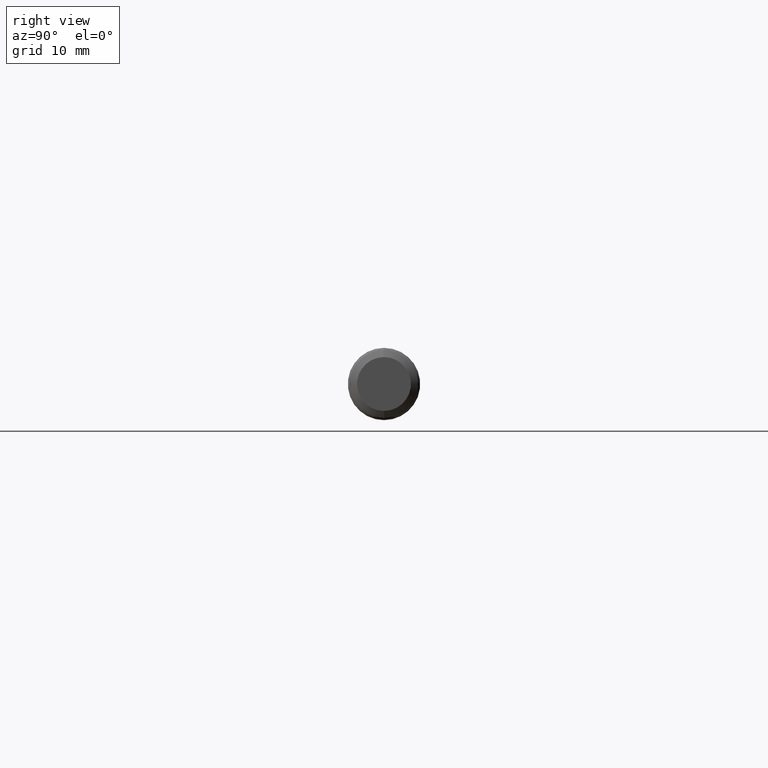
[diagram: clean part render]
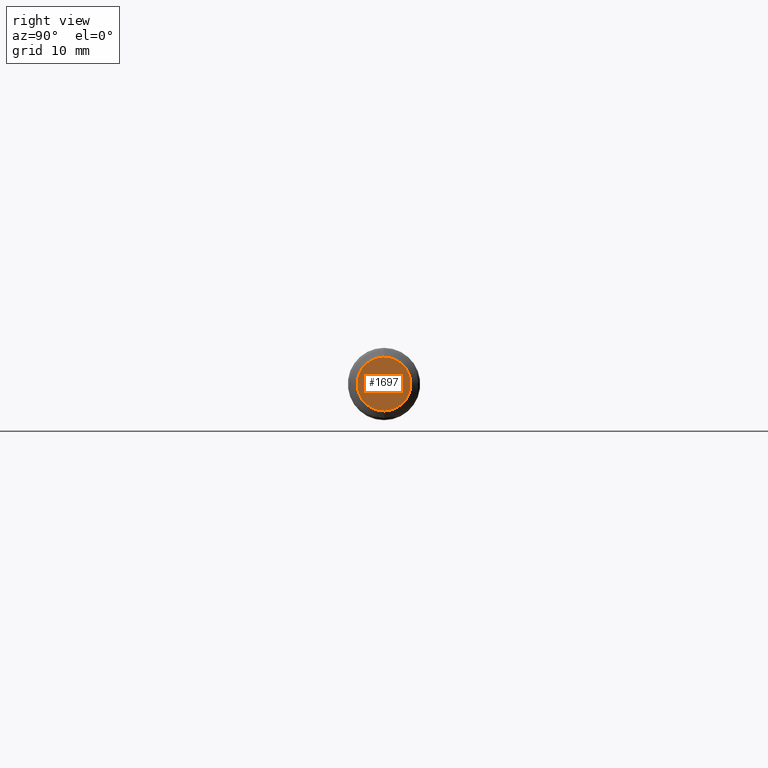
[diagram: same view with one face highlighted and labeled with its STEP entity id]
A machine part, right view. The second image highlights one B-rep face of the part: STEP entity #1697.
In plain terms, the highlighted planar face has unit normal (-1, 0, -0).
Its self-contained STEP definition (entity closure, byte-faithful):
#13 = CARTESIAN_POINT ( 'NONE',  ( 2.500000000000000000, 0.000000000000000000, 0.000000000000000000 ) ) ;
#35 = CARTESIAN_POINT ( 'NONE',  ( 2.500000000000000000, 0.1174999999999999933, 0.000000000000000000 ) ) ;
#145 = CARTESIAN_POINT ( 'NONE',  ( 2.500000000000000000, 0.000000000000000000, 0.000000000000000000 ) ) ;
#535 = DIRECTION ( 'NONE',  ( -1.000000000000000000, -0.000000000000000000, -0.000000000000000000 ) ) ;
#837 = VERTEX_POINT ( 'NONE', #1914 ) ;
#1132 = AXIS2_PLACEMENT_3D ( 'NONE', #145, #1568, #2934 ) ;
#1147 = DIRECTION ( 'NONE',  ( -1.000000000000000000, 0.000000000000000000, -0.000000000000000000 ) ) ;
#1462 = CARTESIAN_POINT ( 'NONE',  ( 2.500000000000000000, 0.000000000000000000, 0.09298460692259646887 ) ) ;
#1509 = FACE_OUTER_BOUND ( 'NONE', #3588, .T. ) ;
#1568 = DIRECTION ( 'NONE',  ( -1.000000000000000000, -0.000000000000000000, -0.000000000000000000 ) ) ;
#1651 = DIRECTION ( 'NONE',  ( 0.000000000000000000, 0.000000000000000000, 1.000000000000000000 ) ) ;
#1697 = ADVANCED_FACE ( 'NONE', ( #1509 ), #2837, .F. ) ;
#1914 = CARTESIAN_POINT ( 'NONE',  ( 2.500000000000000000, 1.138733012377325927E-17, -0.09298460692259646887 ) ) ;
#2245 = CIRCLE ( 'NONE', #2944, 0.09298460692259646887 ) ;
#2690 = ORIENTED_EDGE ( 'NONE', *, *, #3226, .F. ) ;
#2837 = PLANE ( 'NONE',  #2991 ) ;
#2909 = VERTEX_POINT ( 'NONE', #1462 ) ;
#2934 = DIRECTION ( 'NONE',  ( 0.000000000000000000, 0.000000000000000000, 1.000000000000000000 ) ) ;
#2944 = AXIS2_PLACEMENT_3D ( 'NONE', #13, #535, #1651 ) ;
#2991 = AXIS2_PLACEMENT_3D ( 'NONE', #35, #1147, #3398 ) ;
#3003 = ORIENTED_EDGE ( 'NONE', *, *, #3478, .F. ) ;
#3070 = CIRCLE ( 'NONE', #1132, 0.09298460692259646887 ) ;
#3226 = EDGE_CURVE ( 'NONE', #837, #2909, #2245, .T. ) ;
#3398 = DIRECTION ( 'NONE',  ( -0.000000000000000000, 0.000000000000000000, 1.000000000000000000 ) ) ;
#3478 = EDGE_CURVE ( 'NONE', #2909, #837, #3070, .T. ) ;
#3588 = EDGE_LOOP ( 'NONE', ( #3003, #2690 ) ) ;